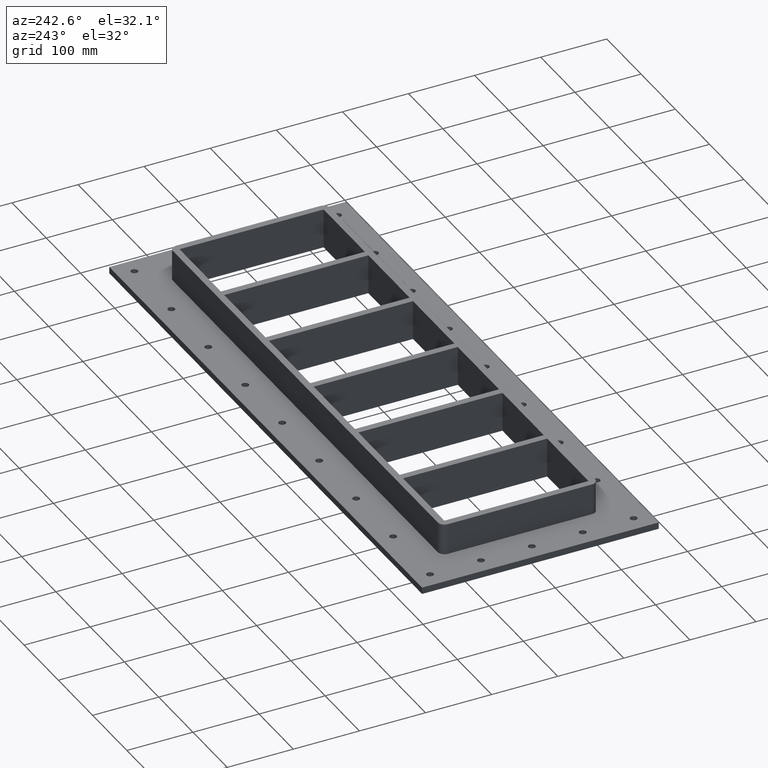
[diagram: clean part render]
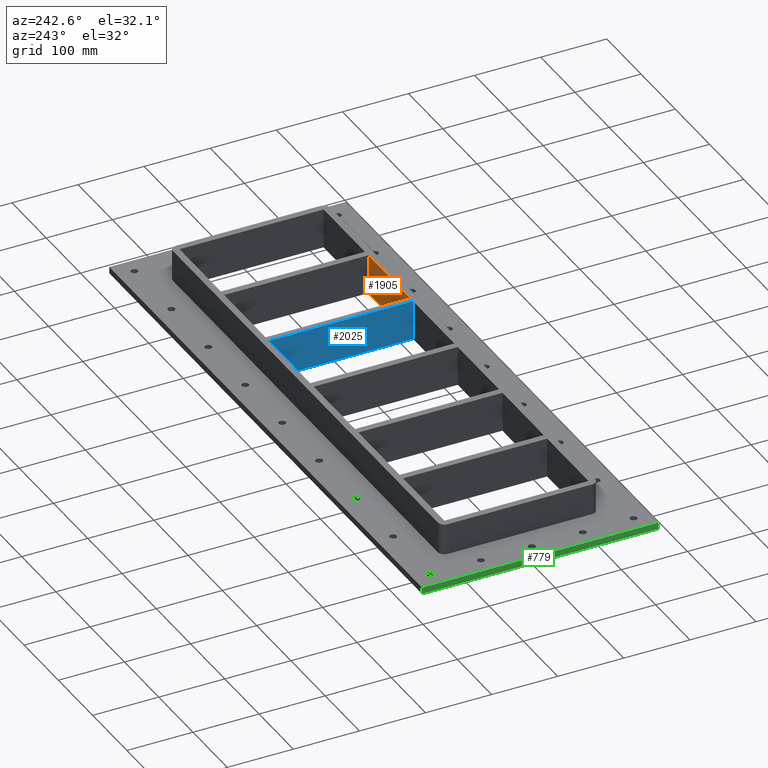
[diagram: same view with three faces highlighted in distinct colors, each labeled with its STEP entity id]
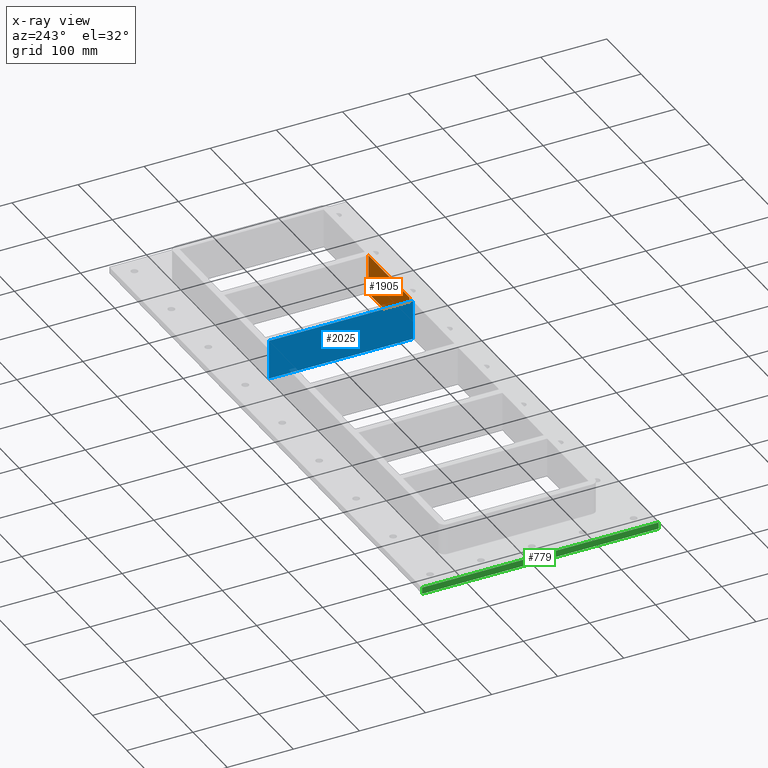
[diagram: x-ray of the same camera — body ghosted, the three highlighted faces saturated]
A machine part, auxiliary view with three faces highlighted in distinct colors.
The next image is the same camera in x-ray (body ghosted, the three faces saturated) — at least one of them is partly hidden behind the body in this view.
Their STEP definitions:

[orange] entity #1905 — the highlighted planar face has unit normal (0, -1, 0).
#1478=CARTESIAN_POINT('',(135.5,-109.00000000000034,-30.0));
#1479=VERTEX_POINT('',#1478);
#1486=CARTESIAN_POINT('',(256.0,-109.00000000000051,-30.0));
#1487=VERTEX_POINT('',#1486);
#1488=CARTESIAN_POINT('',(135.5,-109.00000000000036,-30.0));
#1489=DIRECTION('',(1.0,0.0,0.0));
#1490=VECTOR('',#1489,120.5);
#1491=LINE('',#1488,#1490);
#1492=EDGE_CURVE('',#1479,#1487,#1491,.T.);
#1865=CARTESIAN_POINT('',(135.5,-109.00000000000034,30.0));
#1866=VERTEX_POINT('',#1865);
#1873=CARTESIAN_POINT('',(135.5,-109.00000000000034,30.0));
#1874=DIRECTION('',(0.0,0.0,-1.0));
#1875=VECTOR('',#1874,60.0);
#1876=LINE('',#1873,#1875);
#1877=EDGE_CURVE('',#1866,#1479,#1876,.T.);
#1882=CARTESIAN_POINT('',(256.0,-109.00000000000051,30.0));
#1883=DIRECTION('',(0.0,-1.0,0.0));
#1884=DIRECTION('',(-1.0,0.0,0.0));
#1885=AXIS2_PLACEMENT_3D('',#1882,#1883,#1884);
#1886=PLANE('',#1885);
#1887=ORIENTED_EDGE('',*,*,#1492,.F.);
#1888=ORIENTED_EDGE('',*,*,#1877,.F.);
#1889=CARTESIAN_POINT('',(256.0,-109.00000000000051,30.0));
#1890=VERTEX_POINT('',#1889);
#1891=CARTESIAN_POINT('',(256.0,-109.00000000000053,30.0));
#1892=DIRECTION('',(-1.0,0.0,0.0));
#1893=VECTOR('',#1892,120.5);
#1894=LINE('',#1891,#1893);
#1895=EDGE_CURVE('',#1890,#1866,#1894,.T.);
#1896=ORIENTED_EDGE('',*,*,#1895,.F.);
#1897=CARTESIAN_POINT('',(256.0,-109.00000000000051,30.0));
#1898=DIRECTION('',(0.0,0.0,-1.0));
#1899=VECTOR('',#1898,60.0);
#1900=LINE('',#1897,#1899);
#1901=EDGE_CURVE('',#1890,#1487,#1900,.T.);
#1902=ORIENTED_EDGE('',*,*,#1901,.T.);
#1903=EDGE_LOOP('',(#1887,#1888,#1896,#1902));
#1904=FACE_OUTER_BOUND('',#1903,.T.);
#1905=ADVANCED_FACE('',(#1904),#1886,.F.);

[blue] entity #2025 — the highlighted planar face has unit normal (1, 0, 0).
#1520=CARTESIAN_POINT('',(125.5,-109.00000000000051,-30.0));
#1521=VERTEX_POINT('',#1520);
#1528=CARTESIAN_POINT('',(125.49999999999997,108.99999999999949,-30.0));
#1529=VERTEX_POINT('',#1528);
#1530=CARTESIAN_POINT('',(125.5,-109.00000000000053,-30.0));
#1531=DIRECTION('',(0.0,1.0,0.0));
#1532=VECTOR('',#1531,218.0);
#1533=LINE('',#1530,#1532);
#1534=EDGE_CURVE('',#1521,#1529,#1533,.T.);
#1985=CARTESIAN_POINT('',(125.5,-109.00000000000051,30.0));
#1986=VERTEX_POINT('',#1985);
#1993=CARTESIAN_POINT('',(125.5,-109.00000000000051,30.0));
#1994=DIRECTION('',(0.0,0.0,-1.0));
#1995=VECTOR('',#1994,60.0);
#1996=LINE('',#1993,#1995);
#1997=EDGE_CURVE('',#1986,#1521,#1996,.T.);
#2002=CARTESIAN_POINT('',(125.49999999999997,108.99999999999949,30.0));
#2003=DIRECTION('',(1.0,0.0,0.0));
#2004=DIRECTION('',(0.0,-1.0,0.0));
#2005=AXIS2_PLACEMENT_3D('',#2002,#2003,#2004);
#2006=PLANE('',#2005);
#2007=ORIENTED_EDGE('',*,*,#1534,.F.);
#2008=ORIENTED_EDGE('',*,*,#1997,.F.);
#2009=CARTESIAN_POINT('',(125.49999999999997,108.99999999999949,30.0));
#2010=VERTEX_POINT('',#2009);
#2011=CARTESIAN_POINT('',(125.49999999999996,108.99999999999949,30.0));
#2012=DIRECTION('',(0.0,-1.0,0.0));
#2013=VECTOR('',#2012,218.0);
#2014=LINE('',#2011,#2013);
#2015=EDGE_CURVE('',#2010,#1986,#2014,.T.);
#2016=ORIENTED_EDGE('',*,*,#2015,.F.);
#2017=CARTESIAN_POINT('',(125.49999999999997,108.99999999999949,30.0));
#2018=DIRECTION('',(0.0,0.0,-1.0));
#2019=VECTOR('',#2018,60.0);
#2020=LINE('',#2017,#2019);
#2021=EDGE_CURVE('',#2010,#1529,#2020,.T.);
#2022=ORIENTED_EDGE('',*,*,#2021,.T.);
#2023=EDGE_LOOP('',(#2007,#2008,#2016,#2022));
#2024=FACE_OUTER_BOUND('',#2023,.T.);
#2025=ADVANCED_FACE('',(#2024),#2006,.F.);

[green] entity #779 — the highlighted planar face has unit normal (-1, 0, 0).
#740=CARTESIAN_POINT('',(-456.50000000000006,179.0,-27.0));
#741=DIRECTION('',(-1.0,0.0,0.0));
#742=DIRECTION('',(0.0,-1.0,0.0));
#743=AXIS2_PLACEMENT_3D('',#740,#741,#742);
#744=PLANE('',#743);
#745=CARTESIAN_POINT('',(-456.50000000000006,-179.00000000000006,-27.0));
#746=VERTEX_POINT('',#745);
#747=CARTESIAN_POINT('',(-456.50000000000006,179.0,-27.0));
#748=VERTEX_POINT('',#747);
#749=CARTESIAN_POINT('',(-456.50000000000006,-179.00000000000006,-27.0));
#750=DIRECTION('',(0.0,1.0,0.0));
#751=VECTOR('',#750,358.00000000000006);
#752=LINE('',#749,#751);
#753=EDGE_CURVE('',#746,#748,#752,.T.);
#754=ORIENTED_EDGE('',*,*,#753,.F.);
#755=CARTESIAN_POINT('',(-456.50000000000006,-179.00000000000006,-17.0));
#756=VERTEX_POINT('',#755);
#757=CARTESIAN_POINT('',(-456.50000000000006,-179.00000000000006,-27.0));
#758=DIRECTION('',(0.0,0.0,1.0));
#759=VECTOR('',#758,10.0);
#760=LINE('',#757,#759);
#761=EDGE_CURVE('',#746,#756,#760,.T.);
#762=ORIENTED_EDGE('',*,*,#761,.T.);
#763=CARTESIAN_POINT('',(-456.50000000000006,179.00000000000003,-17.0));
#764=VERTEX_POINT('',#763);
#765=CARTESIAN_POINT('',(-456.50000000000006,179.0,-17.0));
#766=DIRECTION('',(0.0,-1.0,0.0));
#767=VECTOR('',#766,358.00000000000006);
#768=LINE('',#765,#767);
#769=EDGE_CURVE('',#764,#756,#768,.T.);
#770=ORIENTED_EDGE('',*,*,#769,.F.);
#771=CARTESIAN_POINT('',(-456.50000000000006,179.0,-27.0));
#772=DIRECTION('',(0.0,0.0,1.0));
#773=VECTOR('',#772,10.0);
#774=LINE('',#771,#773);
#775=EDGE_CURVE('',#748,#764,#774,.T.);
#776=ORIENTED_EDGE('',*,*,#775,.F.);
#777=EDGE_LOOP('',(#754,#762,#770,#776));
#778=FACE_OUTER_BOUND('',#777,.T.);
#779=ADVANCED_FACE('',(#778),#744,.T.);